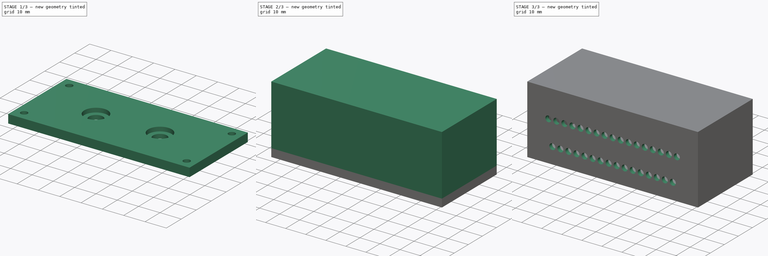
[diagram: build sequence overview — one tinted view per stage of 3, left to right]
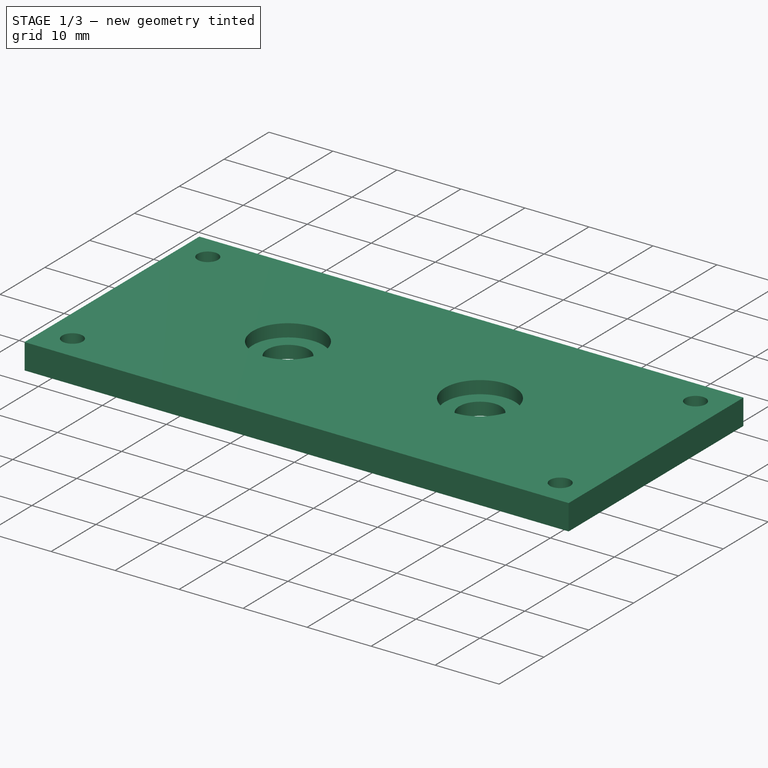
[diagram: stage 1 of 3 — iso view after this stage's code; geometry added in this stage tinted green]
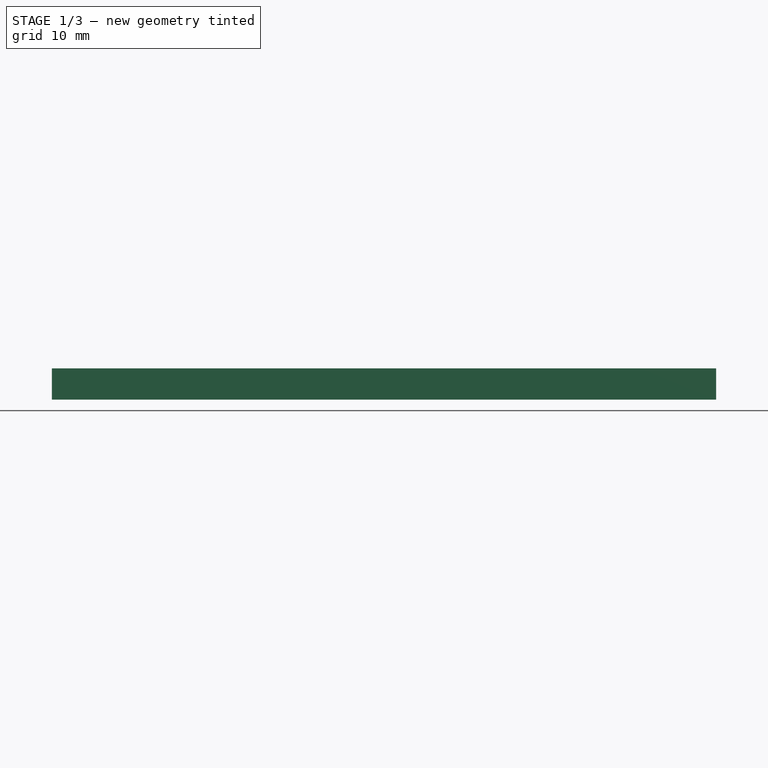
[diagram: stage 1 of 3 — front view after this stage's code; geometry added in this stage tinted green]
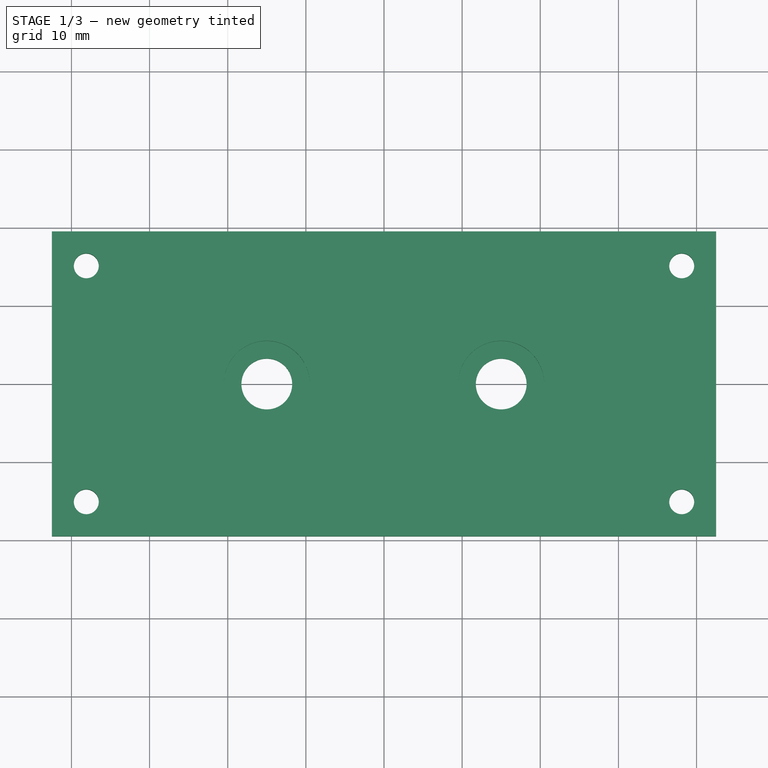
[diagram: stage 1 of 3 — top view after this stage's code; geometry added in this stage tinted green]
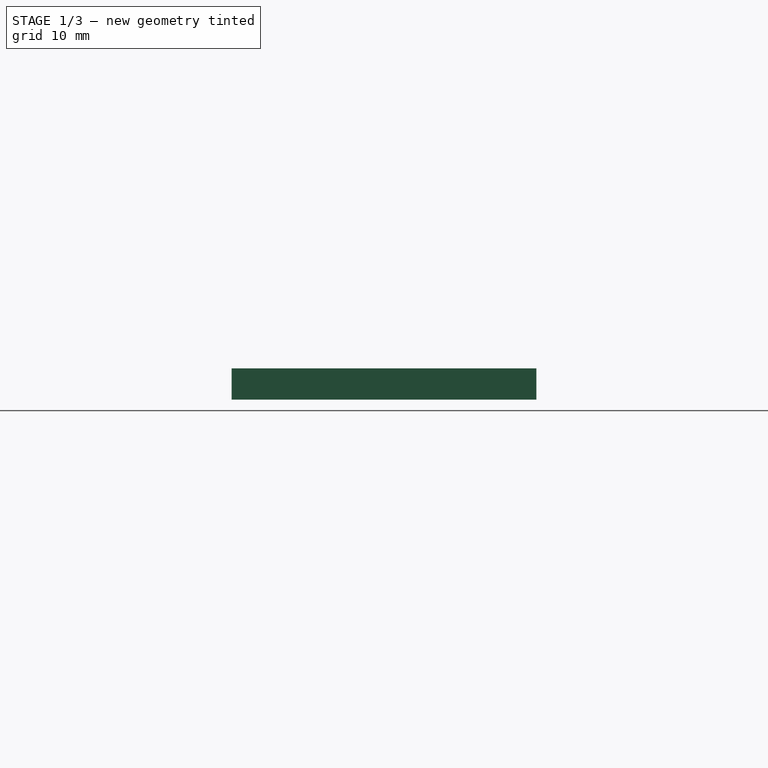
[diagram: stage 1 of 3 — right view after this stage's code; geometry added in this stage tinted green]
FCSTD DOCUMENT  (FreeCAD 0.19R)
Label: box
License: All rights reserved
LicenseURL: http://en.wikipedia.org/wiki/All_rights_reserved
objects: Sketcher::SketchObject×8, PartDesign::Pocket×5, PartDesign::Pad×3, PartDesign::Body×2
note: 26 computed .brp shape members not serialized (recipe doc carries the construction recipe); baked Part::Feature solids carry a one-line shape summary decoded from their .brp

FEATURE [Sketcher::SketchObject] Sketch003
  FullyConstrained = true
  MapMode = 5
  Support = -> [XY_Plane001]
  sketch-geometry (4):
    g0: LineSegment StartX=-42.5 StartY=19.5 StartZ=0 EndX=42.5 EndY=19.5 EndZ=0
    g1: LineSegment StartX=42.5 StartY=19.5 StartZ=0 EndX=42.5 EndY=-19.5 EndZ=0
    g2: LineSegment StartX=42.5 StartY=-19.5 StartZ=0 EndX=-42.5 EndY=-19.5 EndZ=0
    g3: LineSegment StartX=-42.5 StartY=-19.5 StartZ=0 EndX=-42.5 EndY=19.5 EndZ=0
  constraints (12):
    c: Coincident(g0,g1)
    c: Coincident(g1,g2)
    c: Coincident(g2,g3)
    c: Coincident(g3,g0)
    c: Horizontal(g0)
    c: Horizontal(g2)
    c: Vertical(g1)
    c: Vertical(g3)
    c: DistanceX(g0) = 42.5
    c: DistanceY(g0) = 19.5
    c: Distance(g1) = 39
    c: Distance(g2) = 85
FEATURE [PartDesign::Pad] Pad001
  Direction = (1,1,1)
  Length = 4
  Length2 = 100
  Profile = -> Sketch003
  Reversed = true
  Type = 0
FEATURE [PartDesign::Body] Body
  Group = -> [Sketch,Pad,Sketch001,Pocket,Sketch002,Pocket001,Sketch005,Pad003,Sketch006,Pocket002]
  Origin = -> Origin
  Tip = -> Pocket002
FEATURE [Sketcher::SketchObject] Sketch007
  FullyConstrained = true
  MapMode = 5
  Support = -> [XY_Plane001]
  sketch-geometry (6):
    g0: Circle CenterX=-38.1 CenterY=15.1 CenterZ=0 NormalX=0 NormalY=0 NormalZ=1 AngleXU=0 Radius=1.6
    g1: Circle CenterX=-38.1 CenterY=-15.1 CenterZ=0 NormalX=0 NormalY=0 NormalZ=1 AngleXU=0 Radius=1.6
    g2: Circle CenterX=38.1 CenterY=-15.1 CenterZ=0 NormalX=0 NormalY=0 NormalZ=1 AngleXU=0 Radius=1.6
    g3: Circle CenterX=38.1 CenterY=15.1 CenterZ=0 NormalX=0 NormalY=0 NormalZ=1 AngleXU=0 Radius=1.6
    g4: Circle CenterX=-15 CenterY=0 CenterZ=0 NormalX=0 NormalY=0 NormalZ=1 AngleXU=0 Radius=3.25
    g5: Circle CenterX=15 CenterY=0 CenterZ=0 NormalX=0 NormalY=0 NormalZ=1 AngleXU=0 Radius=3.25
  constraints (18):
    c: DistanceX(g3,g-1) = -38.1
    c: DistanceY(g3,g-1) = -15.1
    c: DistanceX(g0) = -38.1
    c: DistanceY(g0) = 15.1
    c: DistanceX(g1) = -38.1
    c: DistanceY(g1) = -15.1
    c: DistanceX(g2) = 38.1
    c: DistanceY(g2) = -15.1
    c: Diameter(g3) = 3.2
    c: Diameter(g0) = 3.2
    c: Diameter(g1) = 3.2
    c: Diameter(g2) = 3.2
    c: Diameter(g4) = 6.5
    c: Diameter(g5) = 6.5
    c: DistanceX(g5) = 15
    c: DistanceY(g5) = 0
    c: DistanceX(g4) = -15
    c: DistanceY(g4) = 0
FEATURE [PartDesign::Pocket] Pocket003
  BaseFeature = -> Pad001
  Length = 5
  Length2 = 100
  Profile = -> Sketch007
  Type = 0
FEATURE [Sketcher::SketchObject] Sketch008
  FullyConstrained = true
  MapMode = 5
  Support = -> [XY_Plane001]
  sketch-geometry (2):
    g0: Circle CenterX=-15 CenterY=0 CenterZ=0 NormalX=0 NormalY=0 NormalZ=1 AngleXU=0 Radius=5.5
    g1: Circle CenterX=15 CenterY=0 CenterZ=0 NormalX=0 NormalY=0 NormalZ=1 AngleXU=0 Radius=5.5
  constraints (6):
    c: Diameter(g1) = 11
    c: Diameter(g0) = 11
    c: DistanceX(g0) = -15
    c: DistanceY(g0) = 0
    c: DistanceX(g1) = 15
    c: DistanceY(g1) = 0
FEATURE [PartDesign::Pocket] Pocket004
  BaseFeature = -> Pocket003
  Length = 2
  Length2 = 100
  Profile = -> Sketch008
  Type = 0
FEATURE [PartDesign::Body] Body001
  Group = -> [Sketch003,Pad001,Sketch007,Pocket003,Sketch008,Pocket004]
  Origin = -> Origin001
  Tip = -> Pocket004
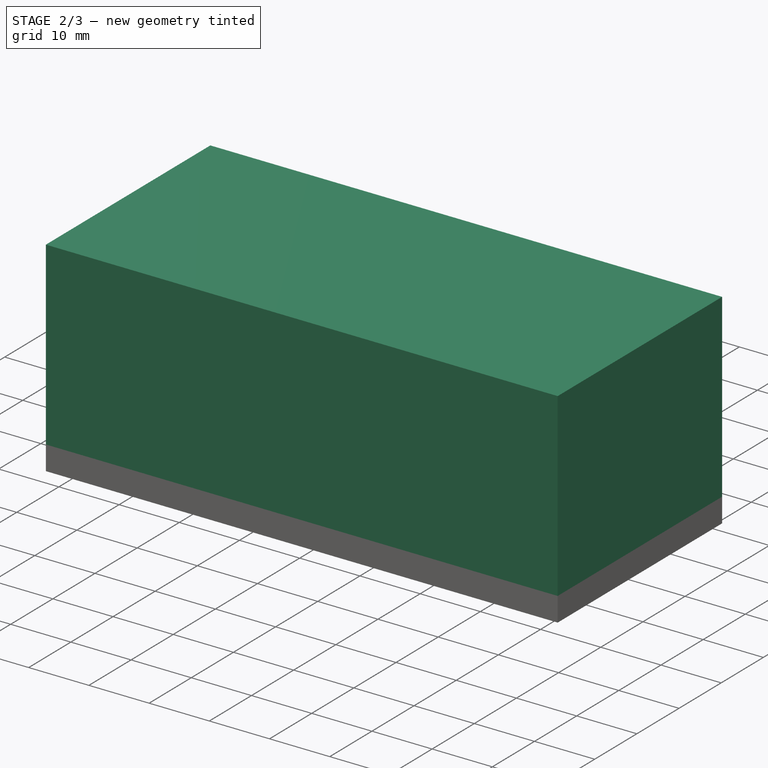
[diagram: stage 2 of 3 — iso view after this stage's code; geometry added in this stage tinted green]
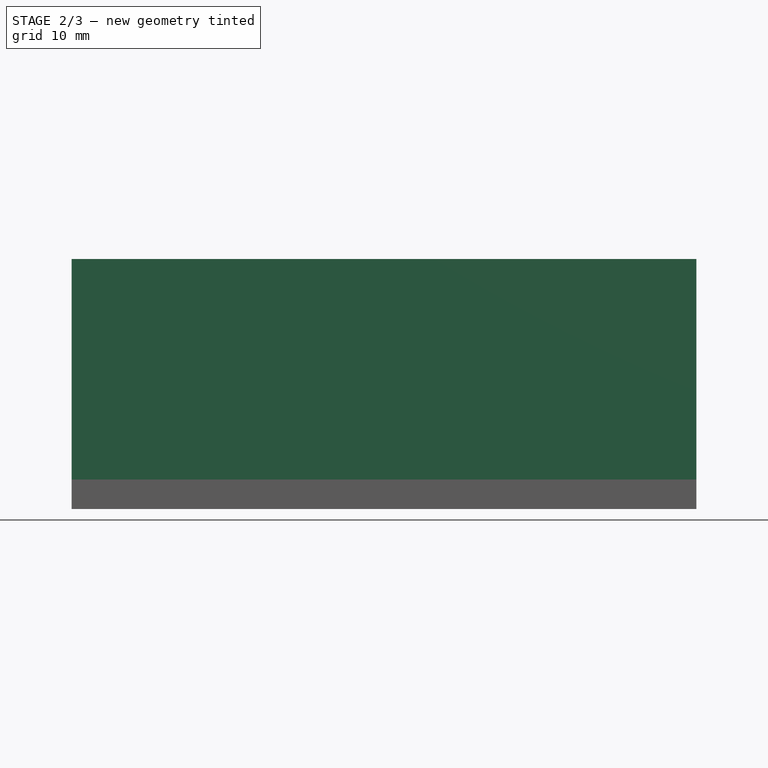
[diagram: stage 2 of 3 — front view after this stage's code; geometry added in this stage tinted green]
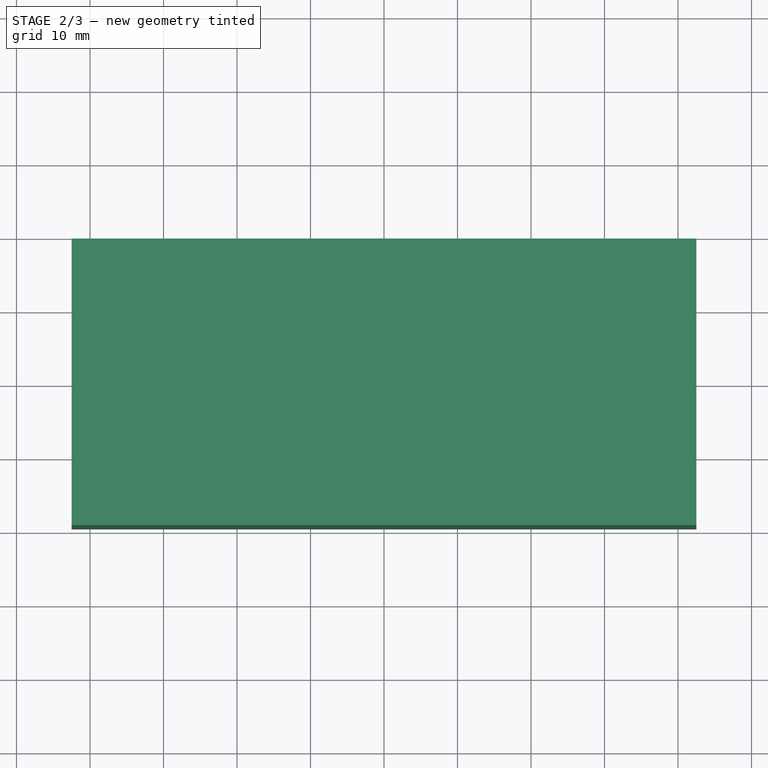
[diagram: stage 2 of 3 — top view after this stage's code; geometry added in this stage tinted green]
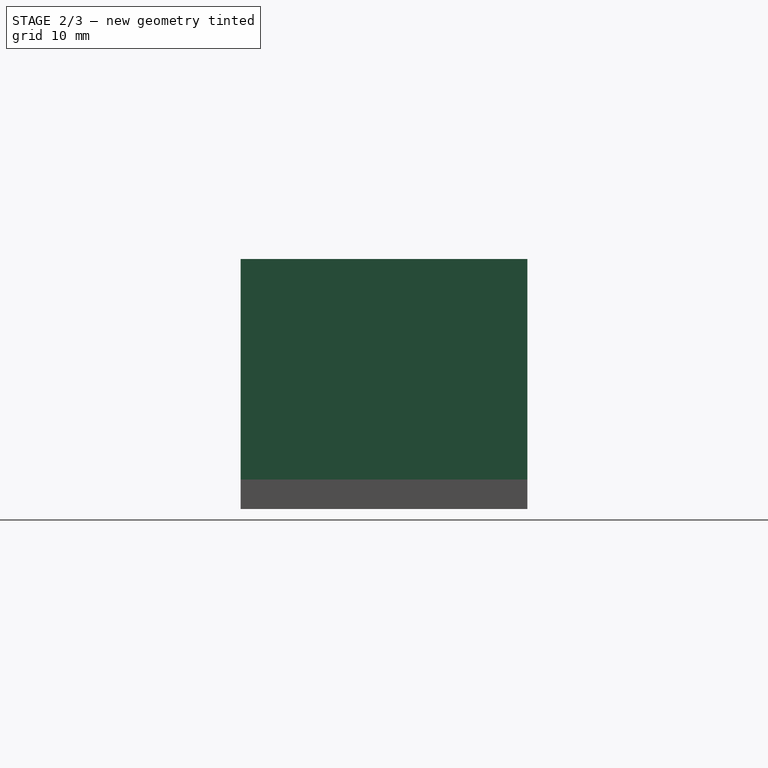
[diagram: stage 2 of 3 — right view after this stage's code; geometry added in this stage tinted green]
FEATURE [Sketcher::SketchObject] Sketch
  FullyConstrained = true
  Support = -> [XY_Plane]
  sketch-geometry (4):
    g0: LineSegment StartX=-42.5 StartY=19.5 StartZ=0 EndX=42.5 EndY=19.5 EndZ=0
    g1: LineSegment StartX=42.5 StartY=19.5 StartZ=0 EndX=42.5 EndY=-19.5 EndZ=0
    g2: LineSegment StartX=42.5 StartY=-19.5 StartZ=0 EndX=-42.5 EndY=-19.5 EndZ=0
    g3: LineSegment StartX=-42.5 StartY=-19.5 StartZ=0 EndX=-42.5 EndY=19.5 EndZ=0
  constraints (12):
    c: Coincident(g0,g1)
    c: Coincident(g1,g2)
    c: Coincident(g2,g3)
    c: Coincident(g3,g0)
    c: Horizontal(g0)
    c: Horizontal(g2)
    c: Vertical(g1)
    c: Vertical(g3)
    c: DistanceX(g0) = 42.5
    c: DistanceY(g0) = 19.5
    c: Distance(g1) = 39
    c: Distance(g0) = 85
FEATURE [PartDesign::Pad] Pad
  AllowMultiFace = false
  Direction = (1,1,1)
  Length = 30
  Length2 = 100
  Profile = -> Sketch
  Type = 0
FEATURE [Sketcher::SketchObject] Sketch001
  FullyConstrained = true
  MapMode = 5
  Support = -> [XY_Plane]
  sketch-geometry (4):
    g0: LineSegment StartX=-40.5 StartY=17.5 StartZ=0 EndX=40.5 EndY=17.5 EndZ=0
    g1: LineSegment StartX=40.5 StartY=17.5 StartZ=0 EndX=40.5 EndY=-17.5 EndZ=0
    g2: LineSegment StartX=40.5 StartY=-17.5 StartZ=0 EndX=-40.5 EndY=-17.5 EndZ=0
    g3: LineSegment StartX=-40.5 StartY=-17.5 StartZ=0 EndX=-40.5 EndY=17.5 EndZ=0
  constraints (12):
    c: Coincident(g0,g1)
    c: Coincident(g1,g2)
    c: Coincident(g2,g3)
    c: Coincident(g3,g0)
    c: Horizontal(g0)
    c: Horizontal(g2)
    c: Vertical(g1)
    c: Vertical(g3)
    c: DistanceX(g0) = 40.5
    c: DistanceY(g0) = 17.5
    c: Distance(g0) = 81
    c: Distance(g1) = 35
FEATURE [PartDesign::Pocket] Pocket
  AllowMultiFace = false
  BaseFeature = -> Pad
  Length = 0
  Length2 = 30
  Midplane = true
  Offset = 3
  Profile = -> Sketch001
  Type = 3
  UpToFace = -> Pad [Face6]
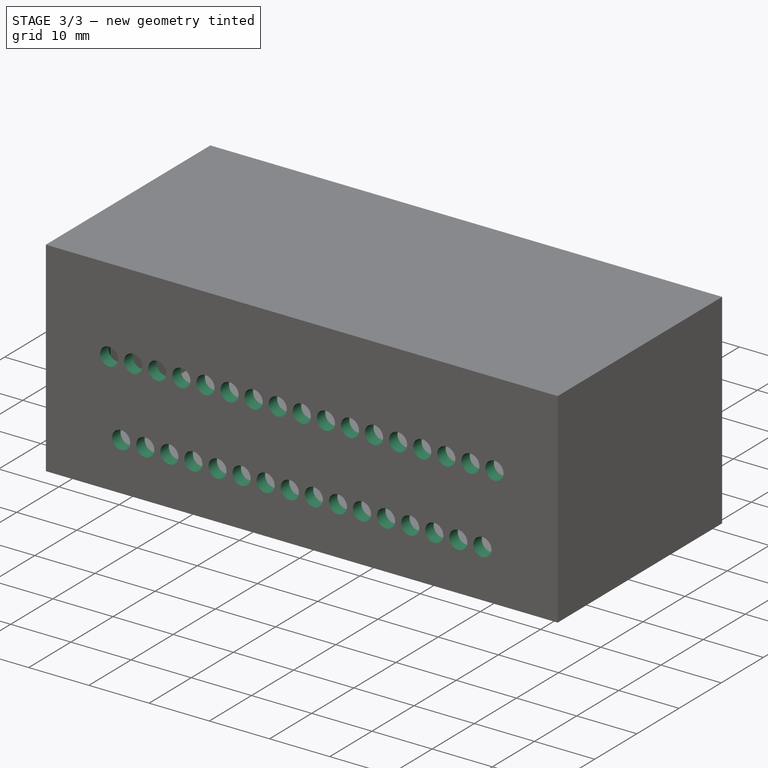
[diagram: stage 3 of 3 — iso view after this stage's code; geometry added in this stage tinted green]
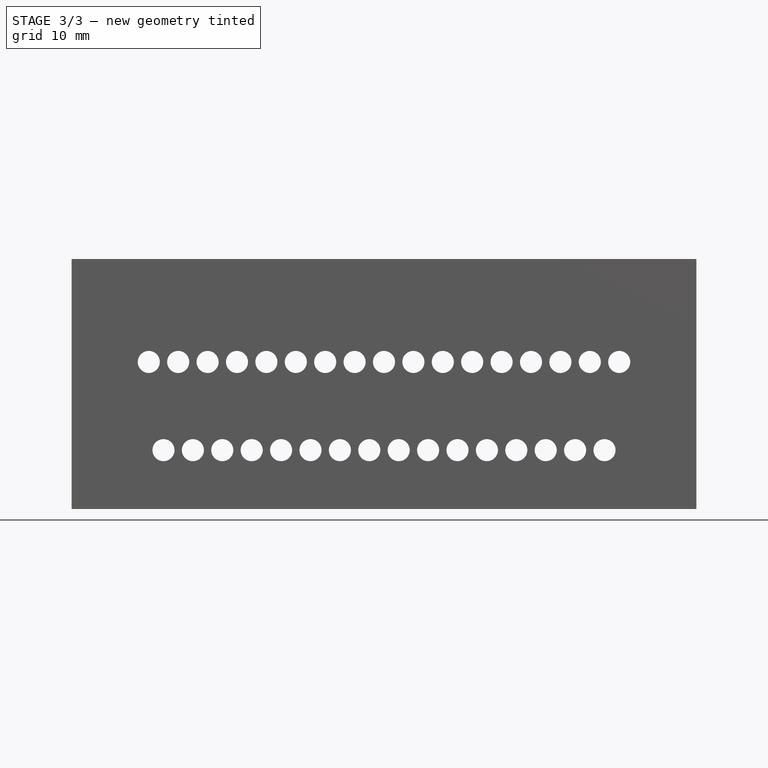
[diagram: stage 3 of 3 — front view after this stage's code; geometry added in this stage tinted green]
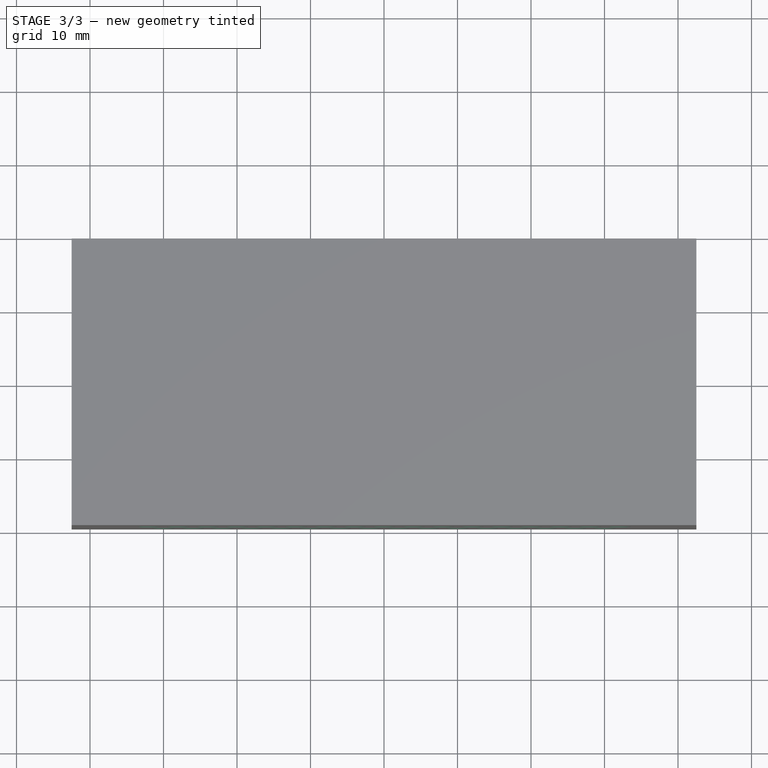
[diagram: stage 3 of 3 — top view after this stage's code; geometry added in this stage tinted green]
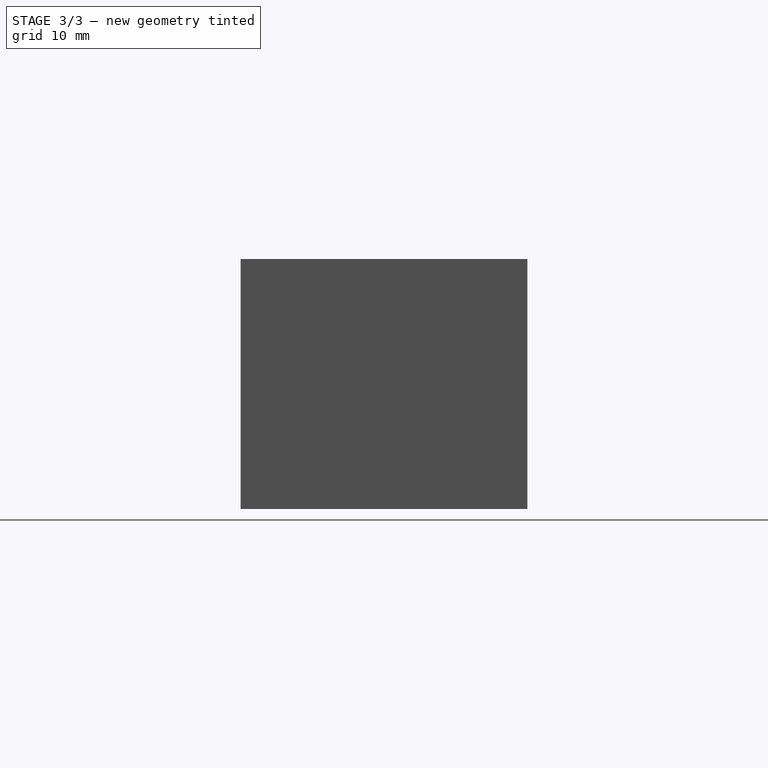
[diagram: stage 3 of 3 — right view after this stage's code; geometry added in this stage tinted green]
FEATURE [Sketcher::SketchObject] Sketch002
  FullyConstrained = true
  MapMode = 5
  Placement = pos=(0,0,0) rot=(1,0,0;1.5708rad)
  Support = -> [XZ_Plane]
  sketch-geometry (4):
    g0: LineSegment StartX=16 StartY=20 StartZ=0 EndX=28 EndY=20 EndZ=0
    g1: LineSegment StartX=28 StartY=20 StartZ=0 EndX=28 EndY=27 EndZ=0
    g2: LineSegment StartX=28 StartY=27 StartZ=0 EndX=16 EndY=27 EndZ=0
    g3: LineSegment StartX=16 StartY=27 StartZ=0 EndX=16 EndY=20 EndZ=0
  constraints (12):
    c: Coincident(g0,g1)
    c: Coincident(g1,g2)
    c: Coincident(g2,g3)
    c: Coincident(g3,g0)
    c: Horizontal(g0)
    c: Horizontal(g2)
    c: Vertical(g1)
    c: Vertical(g3)
    c: DistanceX(g2) = 16
    c: DistanceY(g2) = 27
    c: Distance(g1) = 7
    c: Distance(g0) = 12
FEATURE [PartDesign::Pocket] Pocket001
  BaseFeature = -> Pocket
  Length = 0
  Length2 = 100
  Profile = -> Sketch002
  Type = 3
  UpToFace = -> Pocket [Face1]
FEATURE [Sketcher::SketchObject] Sketch005
  FullyConstrained = true
  MapMode = 5
  Support = -> [XY_Plane]
  sketch-geometry (16):
    g0: LineSegment StartX=-40.5 StartY=-17.5 StartZ=0 EndX=-40.5 EndY=-11.5 EndZ=0
    g1: LineSegment StartX=-40.5 StartY=-17.5 StartZ=0 EndX=-34.5 EndY=-17.5 EndZ=0
    g2: ArcOfCircle CenterX=-40.5 CenterY=-17.5 CenterZ=0 NormalX=0 NormalY=0 NormalZ=1 AngleXU=0 Radius=6 StartAngle=-1.8e-15 EndAngle=1.5708
    g3: LineSegment StartX=-40.5 StartY=17.5 StartZ=0 EndX=-34.5 EndY=17.5 EndZ=0
    g4: LineSegment StartX=-40.5 StartY=17.5 StartZ=0 EndX=-40.5 EndY=11.5 EndZ=0
    g5: ArcOfCircle CenterX=-40.5 CenterY=17.5 CenterZ=0 NormalX=0 NormalY=0 NormalZ=1 AngleXU=0 Radius=6 StartAngle=4.71239 EndAngle=6.28319
    g6: LineSegment StartX=40.5 StartY=17.5 StartZ=0 EndX=40.5 EndY=11.5 EndZ=0
    g7: LineSegment StartX=40.5 StartY=17.5 StartZ=0 EndX=34.5 EndY=17.5 EndZ=0
    g8: ArcOfCircle CenterX=40.5 CenterY=17.5 CenterZ=0 NormalX=0 NormalY=0 NormalZ=1 AngleXU=0 Radius=6 StartAngle=3.14159 EndAngle=4.71239
    g9: Circle CenterX=38.1 CenterY=15.1 CenterZ=0 NormalX=0 NormalY=0 NormalZ=1 AngleXU=0 Radius=1.55
    g10: LineSegment StartX=40.5 StartY=-17.5 StartZ=0 EndX=34.5 EndY=-17.5 EndZ=0
    g11: LineSegment StartX=40.5 StartY=-17.5 StartZ=0 EndX=40.5 EndY=-11.5 EndZ=0
    g12: ArcOfCircle CenterX=40.5 CenterY=-17.5 CenterZ=0 NormalX=0 NormalY=0 NormalZ=1 AngleXU=0 Radius=6 StartAngle=1.5708 EndAngle=3.14159
    g13: Circle CenterX=38.1 CenterY=-15.1 CenterZ=0 NormalX=0 NormalY=0 NormalZ=1 AngleXU=0 Radius=1.55
    g14: Circle CenterX=-38.1 CenterY=15.1 CenterZ=0 NormalX=0 NormalY=0 NormalZ=1 AngleXU=0 Radius=1.55
    g15: Circle CenterX=-38.1 CenterY=-15.1 CenterZ=0 NormalX=0 NormalY=0 NormalZ=1 AngleXU=0 Radius=1.55
  constraints (51):
    c: Coincident(g1,g0)
    c: Coincident(g2,g0)
    c: Coincident(g2,g1)
    c: Distance(g1) = 6
    c: Distance(g0) = 6
    c: Perpendicular(g2,g0)
    c: DistanceX(g0) = -40.5
    c: DistanceY(g0) = -17.5
    c: Angle(g1,g0) = 1.5708
    c: Angle(g0,g-1) = 1.5708
    c: Coincident(g4,g3)
    c: Coincident(g5,g3)
    c: Coincident(g5,g4)
    c: Coincident(g5,g3)
    c: Angle(g4,g3) = 1.5708
    c: Distance(g4) = 6
    c: Angle(g-1,g4) = 1.5708
    c: DistanceX(g3) = -40.5
    c: DistanceY(g3) = 17.5
    c: Coincident(g7,g6)
    c: Coincident(g8,g6)
    c: Coincident(g8,g7)
    c: Angle(g7,g6) = 1.5708
    c: Coincident(g8,g6)
    c: Angle(g7,g6) = 1.5708
    c: Distance(g6) = 6
    c: Angle(g6,g-1) = 1.5708
    c: DistanceX(g6) = 40.5
    c: DistanceY(g6) = 17.5
    c: Coincident(g11,g10)
    c: Coincident(g12,g10)
    c: Coincident(g12,g11)
    c: Angle(g11,g10) = 1.5708
    c: Coincident(g12,g10)
    c: Angle(g11,g10) = 1.5708
    c: Angle(g-1,g11) = 1.5708
    c: Distance(g11) = 6
    c: DistanceX(g10) = 40.5
    c: DistanceY(g10) = -17.5
    c: Diameter(g14) = 3.1
    c: Distance(g14,g4) = 2.4
    c: Distance(g14,g3) = 2.4
    c: Diameter(g15) = 3.1
    c: Distance(g15,g0) = 2.4
    c: Distance(g15,g1) = 2.4
    c: Diameter(g9) = 3.1
    c: Distance(g9,g7) = 2.4
    c: Distance(g9,g6) = 2.4
    c: Diameter(g13) = 3.1
    c: Distance(g13,g11) = 2.4
    c: Distance(g13,g10) = 2.4
FEATURE [PartDesign::Pad] Pad003
  BaseFeature = -> Pocket001
  Direction = (1,1,1)
  Length = 27
  Length2 = 0
  Profile = -> Sketch005
  Type = 4
FEATURE [Sketcher::SketchObject] Sketch006
  FullyConstrained = false
  MapMode = 5
  Placement = pos=(0,0,0) rot=(1,0,0;1.5708rad)
  Support = -> [XZ_Plane]
  sketch-geometry (33):
    g0: Circle CenterX=-30 CenterY=4 CenterZ=0 NormalX=0 NormalY=0 NormalZ=1 AngleXU=0 Radius=1.5
    g1: Circle CenterX=-26 CenterY=4 CenterZ=0 NormalX=0 NormalY=0 NormalZ=1 AngleXU=0 Radius=1.5
    g2: Circle CenterX=-22 CenterY=4 CenterZ=0 NormalX=0 NormalY=0 NormalZ=1 AngleXU=0 Radius=1.5
    g3: Circle CenterX=-18 CenterY=4 CenterZ=0 NormalX=0 NormalY=0 NormalZ=1 AngleXU=0 Radius=1.5
    g4: Circle CenterX=-14 CenterY=4 CenterZ=0 NormalX=0 NormalY=0 NormalZ=1 AngleXU=0 Radius=1.5
    g5: Circle CenterX=-10 CenterY=4 CenterZ=0 NormalX=0 NormalY=0 NormalZ=1 AngleXU=0 Radius=1.5
    g6: Circle CenterX=-6 CenterY=4 CenterZ=0 NormalX=0 NormalY=0 NormalZ=1 AngleXU=0 Radius=1.5
    g7: Circle CenterX=-2 CenterY=4 CenterZ=0 NormalX=0 NormalY=0 NormalZ=1 AngleXU=0 Radius=1.5
    g8: Circle CenterX=2 CenterY=4 CenterZ=0 NormalX=0 NormalY=0 NormalZ=1 AngleXU=0 Radius=1.5
    g9: Circle CenterX=6 CenterY=4 CenterZ=0 NormalX=0 NormalY=0 NormalZ=1 AngleXU=0 Radius=1.5
    g10: Circle CenterX=10 CenterY=4 CenterZ=0 NormalX=0 NormalY=0 NormalZ=1 AngleXU=0 Radius=1.5
    g11: Circle CenterX=14 CenterY=4 CenterZ=0 NormalX=0 NormalY=0 NormalZ=1 AngleXU=0 Radius=1.5
    g12: Circle CenterX=18 CenterY=4 CenterZ=0 NormalX=0 NormalY=0 NormalZ=1 AngleXU=0 Radius=1.5
    g13: Circle CenterX=22 CenterY=4 CenterZ=0 NormalX=0 NormalY=0 NormalZ=1 AngleXU=0 Radius=1.5
    g14: Circle CenterX=26 CenterY=4 CenterZ=0 NormalX=0 NormalY=0 NormalZ=1 AngleXU=0 Radius=1.5
    g15: Circle CenterX=30 CenterY=4 CenterZ=0 NormalX=0 NormalY=0 NormalZ=1 AngleXU=0 Radius=1.5
    g16: Circle CenterX=-28 CenterY=16 CenterZ=0 NormalX=0 NormalY=0 NormalZ=1 AngleXU=0 Radius=1.5
    g17: Circle CenterX=-24 CenterY=16 CenterZ=0 NormalX=0 NormalY=0 NormalZ=1 AngleXU=0 Radius=1.5
    g18: Circle CenterX=-20 CenterY=16 CenterZ=0 NormalX=0 NormalY=0 NormalZ=1 AngleXU=0 Radius=1.5
    g19: Circle CenterX=-16 CenterY=16 CenterZ=0 NormalX=0 NormalY=0 NormalZ=1 AngleXU=0 Radius=1.5
    g20: Circle CenterX=-12 CenterY=16 CenterZ=0 NormalX=0 NormalY=0 NormalZ=1 AngleXU=0 Radius=1.5
    g21: Circle CenterX=-8 CenterY=16 CenterZ=0 NormalX=0 NormalY=0 NormalZ=1 AngleXU=0 Radius=1.5
    g22: Circle CenterX=-4 CenterY=16 CenterZ=0 NormalX=0 NormalY=0 NormalZ=1 AngleXU=0 Radius=1.5
    g23: Circle CenterX=0 CenterY=16 CenterZ=0 NormalX=0 NormalY=0 NormalZ=1 AngleXU=0 Radius=1.5
    g24: Circle CenterX=4 CenterY=16 CenterZ=0 NormalX=0 NormalY=0 NormalZ=1 AngleXU=0 Radius=1.5
    g25: Circle CenterX=8 CenterY=16 CenterZ=0 NormalX=0 NormalY=0 NormalZ=1 AngleXU=0 Radius=1.5
    g26: Circle CenterX=12 CenterY=16 CenterZ=0 NormalX=0 NormalY=0 NormalZ=1 AngleXU=0 Radius=1.5
    g27: Circle CenterX=16 CenterY=16 CenterZ=0 NormalX=0 NormalY=0 NormalZ=1 AngleXU=0 Radius=1.5
    g28: Circle CenterX=20 CenterY=16 CenterZ=0 NormalX=0 NormalY=0 NormalZ=1 AngleXU=0 Radius=1.5
    g29: Circle CenterX=24 CenterY=16 CenterZ=0 NormalX=0 NormalY=0 NormalZ=1 AngleXU=0 Radius=1.5
    g30: Circle CenterX=28 CenterY=16 CenterZ=0 NormalX=0 NormalY=0 NormalZ=1 AngleXU=0 Radius=1.5
    g31: Circle CenterX=32 CenterY=16 CenterZ=0 NormalX=0 NormalY=0 NormalZ=1 AngleXU=0 Radius=1.5
    g32: Circle CenterX=-32 CenterY=16 CenterZ=0 NormalX=0 NormalY=0 NormalZ=1 AngleXU=0 Radius=1.5
  constraints (95):
    c: Diameter(g0) = 3
    c: Equal(g0,g1) = 3
    c: DistanceY(g0,g1) = 0
    c: Equal(g0,g2) = 3
    c: Equal(g2,g3) = 3
    c: DistanceY(g2,g3) = 0
    c: DistanceX(g0,g1) = 4
    c: DistanceX(g1,g2) = 4
    c: DistanceY(g1,g2) = 0
    c: Distance(g3,g2) = 4
    c: Equal(g0,g4) = 3
    c: Equal(g4,g5) = 3
    c: DistanceY(g4,g5) = 0
    c: Equal(g4,g6) = 3
    c: Equal(g6,g7) = 3
    c: DistanceY(g6,g7) = 0
    c: DistanceX(g4,g5) = 4
    c: DistanceX(g5,g6) = 4
    c: DistanceY(g5,g6) = 0
    c: Distance(g7,g6) = 4
    c: DistanceX(g3,g4) = 4
    c: DistanceY(g3,g4) = 0
    c: Equal(g0,g8) = 3
    c: Equal(g8,g9) = 3
    c: DistanceY(g8,g9) = 0
    c: Equal(g8,g10) = 3
    c: Equal(g10,g11) = 3
    c: DistanceY(g10,g11) = 0
    c: DistanceX(g8,g9) = 4
    c: DistanceX(g9,g10) = 4
    c: DistanceY(g9,g10) = 0
    c: Distance(g11,g10) = 4
    c: Equal(g8,g12) = 3
    c: Equal(g12,g13) = 3
    c: DistanceY(g12,g13) = 0
    c: Equal(g12,g14) = 3
    c: Equal(g14,g15) = 3
    c: DistanceY(g14,g15) = 0
    c: DistanceX(g12,g13) = 4
    c: DistanceX(g13,g14) = 4
    c: DistanceY(g13,g14) = 0
    c: Distance(g15,g14) = 4
    c: DistanceX(g11,g12) = 4
    c: DistanceY(g11,g12) = 0
    c: DistanceX(g7,g8) = 4
    c: DistanceY(g7,g8) = 0
    c: Equal(g16,g17) = 3
    c: DistanceY(g16,g17) = 0
    c: Equal(g16,g18) = 3
    c: Equal(g18,g19) = 3
    c: DistanceY(g18,g19) = 0
    c: DistanceX(g16,g17) = 4
    c: DistanceX(g17,g18) = 4
    c: DistanceY(g17,g18) = 0
    c: Distance(g19,g18) = 4
    c: Equal(g16,g20) = 3
    c: Equal(g20,g21) = 3
    c: DistanceY(g20,g21) = 0
    c: Equal(g20,g22) = 3
    c: Equal(g22,g23) = 3
    c: DistanceY(g22,g23) = 0
    c: DistanceX(g20,g21) = 4
    c: DistanceX(g21,g22) = 4
    c: DistanceY(g21,g22) = 0
    c: Distance(g23,g22) = 4
    c: DistanceX(g19,g20) = 4
    c: DistanceY(g19,g20) = 0
    c: Equal(g16,g24) = 3
    c: Equal(g24,g25) = 3
    c: DistanceY(g24,g25) = 0
    c: Equal(g24,g26) = 3
    c: Equal(g26,g27) = 3
    c: DistanceY(g26,g27) = 0
    c: DistanceX(g24,g25) = 4
    c: DistanceX(g25,g26) = 4
    c: DistanceY(g25,g26) = 0
    c: Distance(g27,g26) = 4
    c: Equal(g24,g28) = 3
    c: Equal(g28,g29) = 3
    c: DistanceY(g28,g29) = 0
    c: Equal(g28,g30) = 3
    c: Equal(g30,g31) = 3
    c: DistanceY(g30,g31) = 0
    c: DistanceX(g28,g29) = 4
    c: DistanceX(g29,g30) = 4
    c: DistanceY(g29,g30) = 0
    c: Distance(g31,g30) = 4
    c: DistanceX(g27,g28) = 4
    c: DistanceY(g27,g28) = 0
    c: DistanceX(g23,g24) = 4
    c: DistanceY(g23,g24) = 0
    c: DistanceX(g32,g16) = 4
    c: DistanceY(g32,g16) = 0
    c: DistanceX(g32) = -32
    c: DistanceY(g32) = 16
FEATURE [PartDesign::Pocket] Pocket002
  BaseFeature = -> Pad003
  Length = 50
  Length2 = 100
  Midplane = true
  Profile = -> Sketch006
  Type = 0
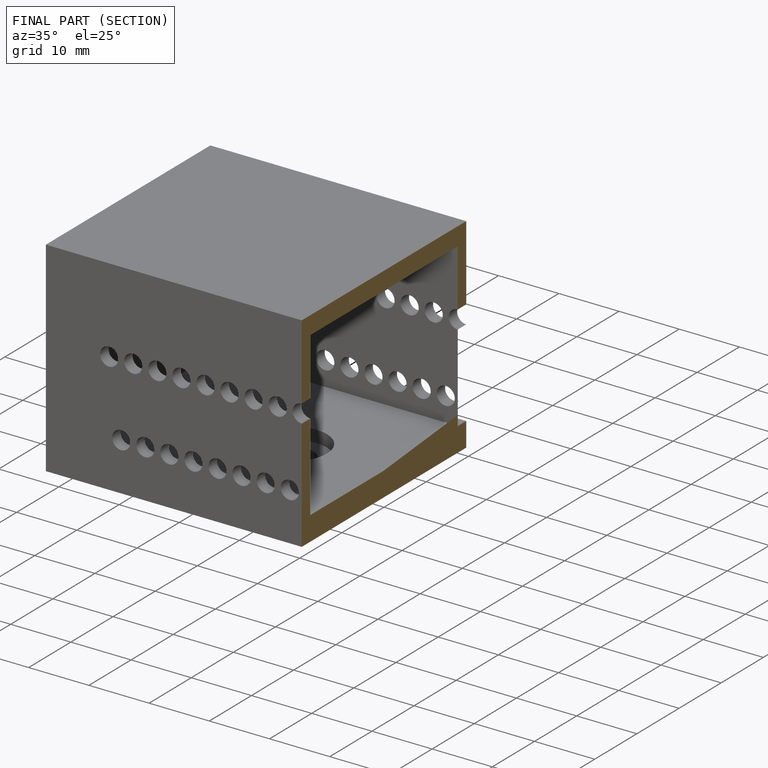
[diagram: finished part — half-section view (interior)]
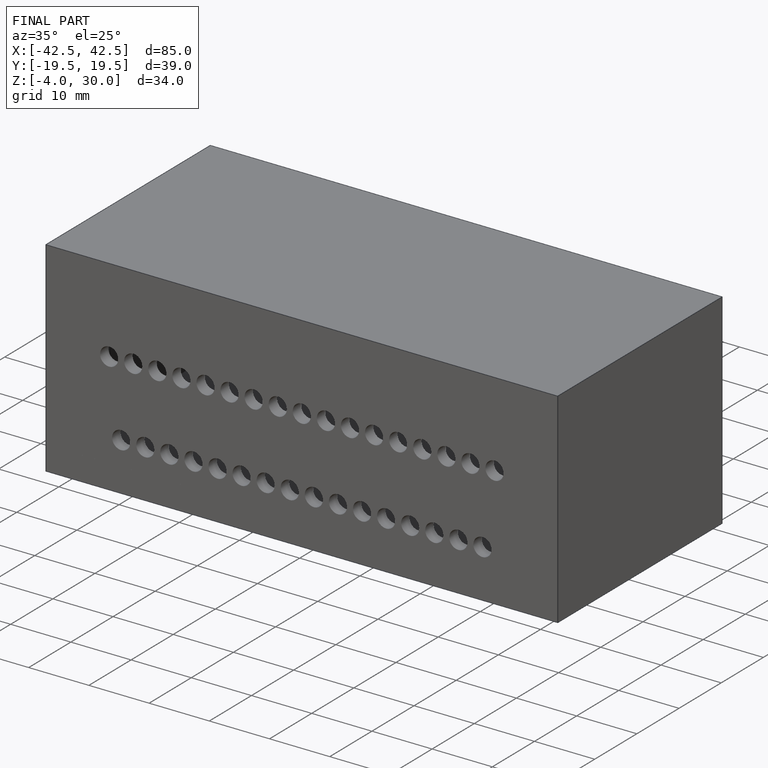
[diagram: finished part — iso view with bounding-box wireframe]
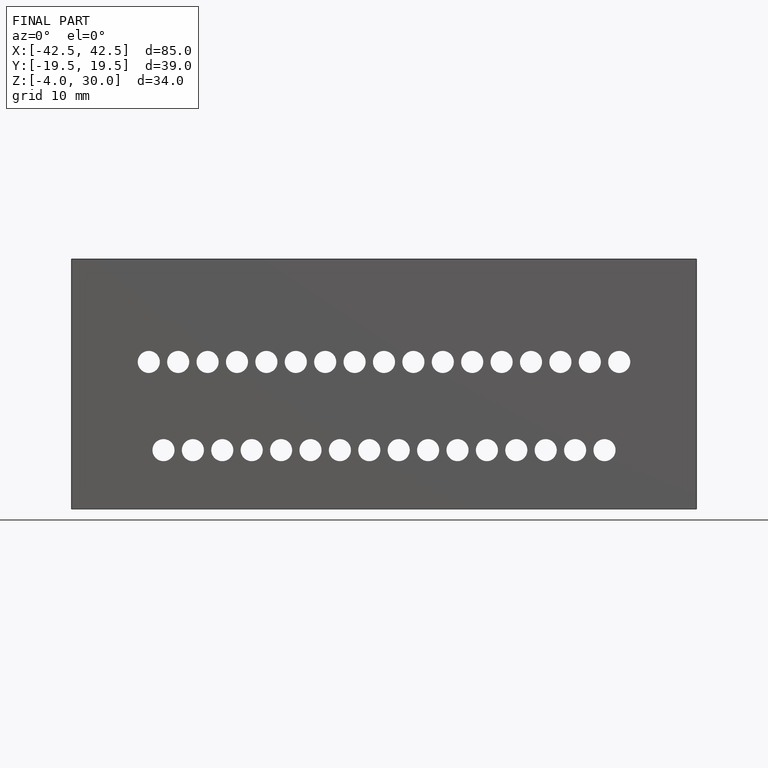
[diagram: finished part — front view with bounding-box wireframe]
